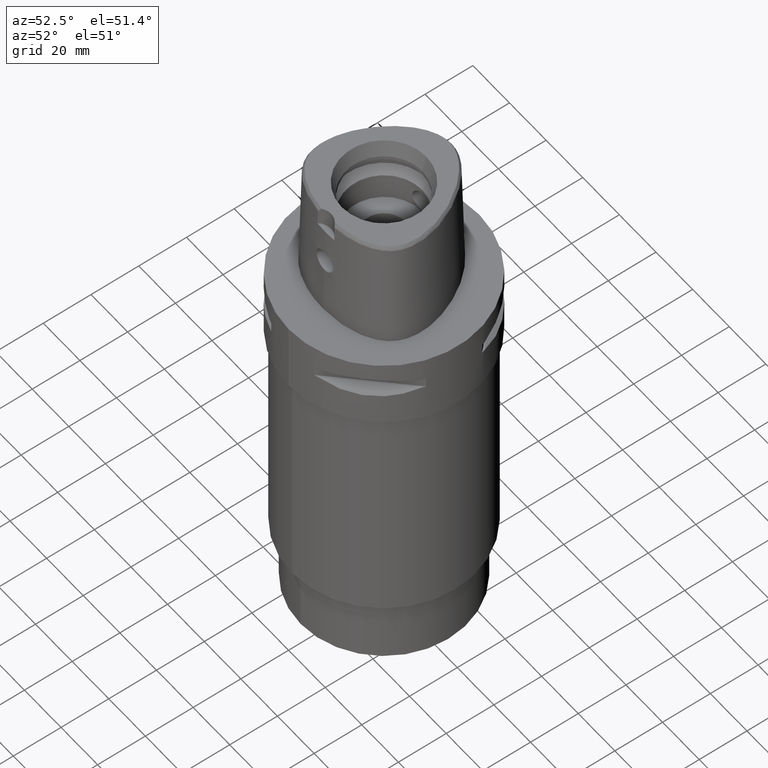
[diagram: clean part render]
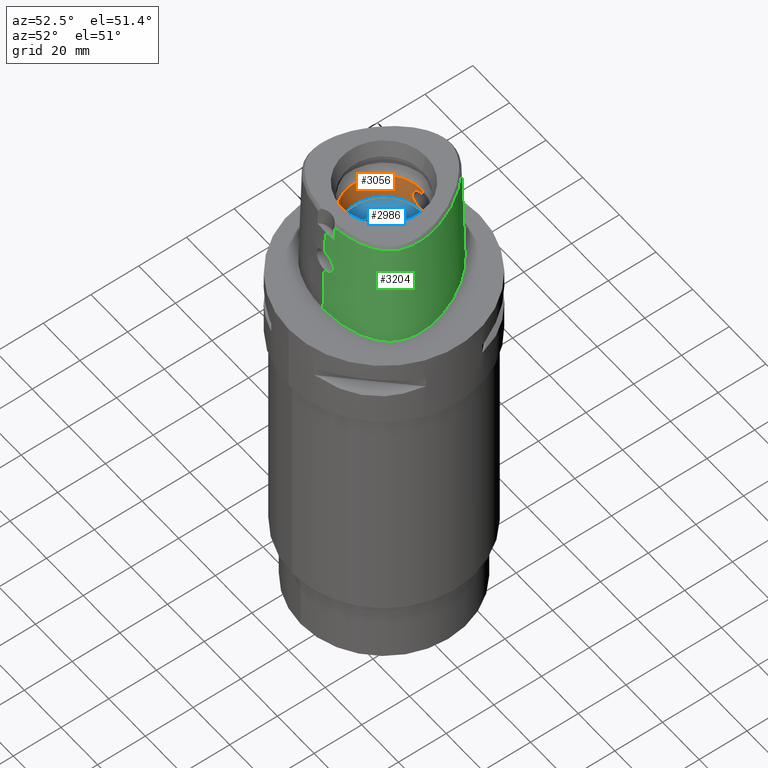
[diagram: same view with three faces highlighted in distinct colors, each labeled with its STEP entity id]
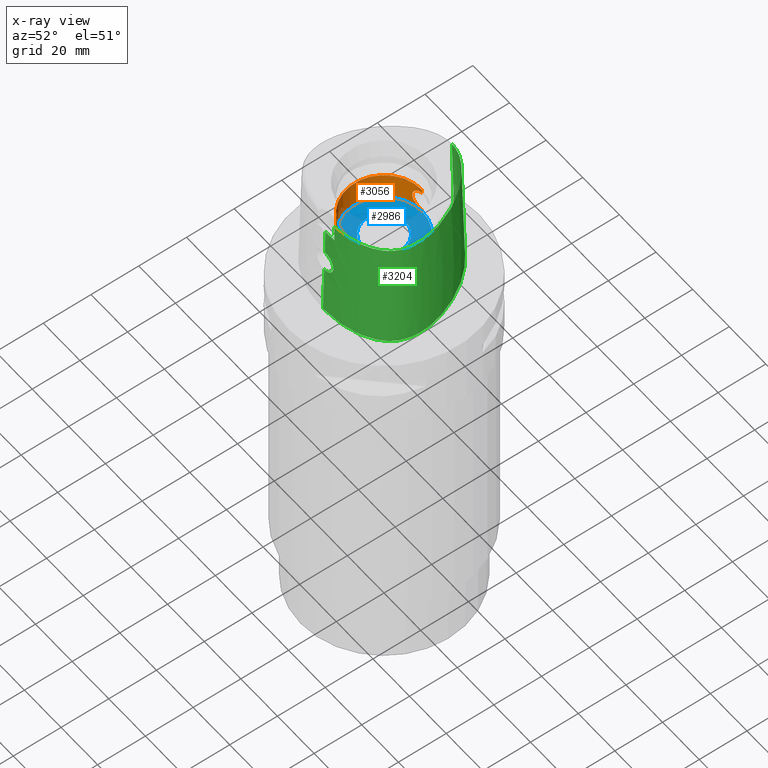
[diagram: x-ray of the same camera — body ghosted, the three highlighted faces saturated]
A machine part, auxiliary view with three faces highlighted in distinct colors.
The next image is the same camera in x-ray (body ghosted, the three faces saturated) — at least one of them is partly hidden behind the body in this view.
Their STEP definitions:

[orange] entity #3056 — the highlighted cylindrical surface (partial cylindrical patch) has radius 16 mm, axis along (0, 0, -1).
#892=CARTESIAN_POINT('',(0.E0,0.E0,2.E1));
#893=DIRECTION('',(0.E0,0.E0,-1.E0));
#894=DIRECTION('',(0.E0,-1.E0,0.E0));
#895=AXIS2_PLACEMENT_3D('',#892,#893,#894);
#916=CARTESIAN_POINT('',(0.E0,1.6E1,2.045E1));
#930=CARTESIAN_POINT('',(0.E0,1.6E1,2.955E1));
#935=DIRECTION('',(0.E0,0.E0,1.E0));
#936=VECTOR('',#935,1.95E0);
#937=CARTESIAN_POINT('',(0.E0,1.6E1,2.955E1));
#938=LINE('',#937,#936);
#956=CARTESIAN_POINT('',(0.E0,-1.6E1,2.045E1));
#961=DIRECTION('',(0.E0,0.E0,1.E0));
#962=VECTOR('',#961,4.5E-1);
#963=CARTESIAN_POINT('',(0.E0,1.6E1,2.E1));
#964=LINE('',#963,#962);
#982=CARTESIAN_POINT('',(0.E0,-1.6E1,2.045E1));
#983=CARTESIAN_POINT('',(-3.988948998125E-1,-1.6E1,2.045E1));
#984=CARTESIAN_POINT('',(-1.170987360633E0,-1.597053913087E1,2.055220966178E1));
#985=CARTESIAN_POINT('',(-2.269206104284E0,-1.585004398631E1,2.099599436019E1));
#986=CARTESIAN_POINT('',(-3.235863776278E0,-1.567764363437E1,2.172609325033E1));
#987=CARTESIAN_POINT('',(-3.979904703448E0,-1.550130476977E1,2.268481060305E1));
#988=CARTESIAN_POINT('',(-4.449784393742E0,-1.536976417383E1,2.382040560353E1));
#989=CARTESIAN_POINT('',(-4.600141431500E0,-1.532423574871E1,2.500311963522E1));
#990=CARTESIAN_POINT('',(-4.449652105277E0,-1.536975233797E1,2.617039791798E1));
#991=CARTESIAN_POINT('',(-3.998276541425E0,-1.549625109279E1,2.727843841681E1));
#992=CARTESIAN_POINT('',(-3.274688999697E0,-1.566934067946E1,2.823518132932E1));
#993=CARTESIAN_POINT('',(-2.304725749980E0,-1.584538307429E1,2.898660912360E1));
#994=CARTESIAN_POINT('',(-1.179316718045E0,-1.597044866855E1,2.944760162686E1));
#995=CARTESIAN_POINT('',(-4.011673779186E-1,-1.6E1,2.955E1));
#996=CARTESIAN_POINT('',(0.E0,-1.6E1,2.955E1));
#1001=DIRECTION('',(0.E0,0.E0,1.E0));
#1002=VECTOR('',#1001,1.95E0);
#1003=CARTESIAN_POINT('',(0.E0,-1.6E1,2.955E1));
#1004=LINE('',#1003,#1002);
#1008=CARTESIAN_POINT('',(0.E0,1.6E1,2.955E1));
#1009=CARTESIAN_POINT('',(-3.988854368759E-1,1.6E1,2.955E1));
#1010=CARTESIAN_POINT('',(-1.170962987921E0,1.597054019011E1,2.944779447969E1));
#1011=CARTESIAN_POINT('',(-2.269151986787E0,1.585005145508E1,2.900403236787E1));
#1012=CARTESIAN_POINT('',(-3.235831887755E0,1.567765138962E1,2.827394962471E1));
#1013=CARTESIAN_POINT('',(-3.979933991153E0,1.550129737255E1,2.731514259268E1));
#1014=CARTESIAN_POINT('',(-4.449770091995E0,1.536976800640E1,2.617961812657E1));
#1015=CARTESIAN_POINT('',(-4.600139734699E0,1.532423627942E1,2.499694128467E1));
#1016=CARTESIAN_POINT('',(-4.449673220549E0,1.536974637474E1,2.382965812239E1));
#1017=CARTESIAN_POINT('',(-3.998261880303E0,1.549625493795E1,2.272153221716E1));
#1018=CARTESIAN_POINT('',(-3.274703198311E0,1.566933721044E1,2.176483934127E1));
#1019=CARTESIAN_POINT('',(-2.304747804114E0,1.584537985950E1,2.101340190333E1));
#1020=CARTESIAN_POINT('',(-1.179336456756E0,1.597044741960E1,2.055240325074E1));
#1021=CARTESIAN_POINT('',(-4.011754548511E-1,1.6E1,2.045E1));
#1022=CARTESIAN_POINT('',(0.E0,1.6E1,2.045E1));
#1027=DIRECTION('',(0.E0,0.E0,1.E0));
#1028=VECTOR('',#1027,4.5E-1);
#1029=CARTESIAN_POINT('',(0.E0,-1.6E1,2.E1));
#1030=LINE('',#1029,#1028);
#1126=CARTESIAN_POINT('',(0.E0,0.E0,3.15E1));
#1127=DIRECTION('',(0.E0,0.E0,1.E0));
#1128=DIRECTION('',(0.E0,1.E0,0.E0));
#1129=AXIS2_PLACEMENT_3D('',#1126,#1127,#1128);
#1709=CARTESIAN_POINT('',(0.E0,1.6E1,2.E1));
#1710=CARTESIAN_POINT('',(0.E0,-1.6E1,2.E1));
#1711=VERTEX_POINT('',#1709);
#1712=VERTEX_POINT('',#1710);
#1713=VERTEX_POINT('',#916);
#1714=VERTEX_POINT('',#930);
#1715=CARTESIAN_POINT('',(0.E0,1.6E1,3.15E1));
#1716=VERTEX_POINT('',#1715);
#1717=CARTESIAN_POINT('',(0.E0,-1.6E1,3.15E1));
#1718=VERTEX_POINT('',#1717);
#1719=CARTESIAN_POINT('',(0.E0,-1.6E1,2.955E1));
#1720=VERTEX_POINT('',#1719);
#1721=VERTEX_POINT('',#956);
#3039=CARTESIAN_POINT('',(0.E0,0.E0,5.04E1));
#3040=DIRECTION('',(0.E0,0.E0,-1.E0));
#3041=DIRECTION('',(0.E0,-1.E0,0.E0));
#3042=AXIS2_PLACEMENT_3D('',#3039,#3040,#3041);
#3043=CYLINDRICAL_SURFACE('',#3042,1.6E1);
#3045=ORIENTED_EDGE('',*,*,#3044,.T.);
#3046=ORIENTED_EDGE('',*,*,#2998,.T.);
#3048=ORIENTED_EDGE('',*,*,#3047,.F.);
#3049=ORIENTED_EDGE('',*,*,#2994,.F.);
#3050=ORIENTED_EDGE('',*,*,#3031,.T.);
#3051=ORIENTED_EDGE('',*,*,#3005,.F.);
#3052=ORIENTED_EDGE('',*,*,#2978,.F.);
#3053=ORIENTED_EDGE('',*,*,#3002,.T.);
#3054=EDGE_LOOP('',(#3045,#3046,#3048,#3049,#3050,#3051,#3052,#3053));
#3055=FACE_OUTER_BOUND('',#3054,.F.);
#896=CIRCLE('',#895,1.6E1);
#997=B_SPLINE_CURVE_WITH_KNOTS('',3,(#982,#983,#984,#985,#986,#987,#988,#989,
#990,#991,#992,#993,#994,#995,#996),.UNSPECIFIED.,.F.,.F.,(4,1,1,1,1,1,1,1,1,1,
1,1,4),(0.E0,8.333333333333E-2,1.666666666667E-1,2.5E-1,3.333333333333E-1,
4.166666666667E-1,5.E-1,5.833333333333E-1,6.666666666667E-1,7.5E-1,
8.333333333333E-1,9.166666666667E-1,1.E0),.UNSPECIFIED.);
#1023=B_SPLINE_CURVE_WITH_KNOTS('',3,(#1008,#1009,#1010,#1011,#1012,#1013,#1014,
#1015,#1016,#1017,#1018,#1019,#1020,#1021,#1022),.UNSPECIFIED.,.F.,.F.,(4,1,1,1,
1,1,1,1,1,1,1,1,4),(0.E0,8.333333333333E-2,1.666666666667E-1,2.5E-1,
3.333333333333E-1,4.166666666667E-1,5.E-1,5.833333333333E-1,6.666666666667E-1,
7.5E-1,8.333333333333E-1,9.166666666667E-1,1.E0),.UNSPECIFIED.);
#1130=CIRCLE('',#1129,1.6E1);
#2978=EDGE_CURVE('',#1712,#1711,#896,.T.);
#2994=EDGE_CURVE('',#1714,#1716,#938,.T.);
#2998=EDGE_CURVE('',#1720,#1718,#1004,.T.);
#3002=EDGE_CURVE('',#1712,#1721,#1030,.T.);
#3005=EDGE_CURVE('',#1711,#1713,#964,.T.);
#3031=EDGE_CURVE('',#1714,#1713,#1023,.T.);
#3044=EDGE_CURVE('',#1721,#1720,#997,.T.);
#3047=EDGE_CURVE('',#1716,#1718,#1130,.T.);
#3056=ADVANCED_FACE('',(#3055),#3043,.F.);

[blue] entity #2986 — the highlighted planar face has unit normal (0, 0, -1).
#884=CARTESIAN_POINT('',(0.E0,0.E0,2.E1));
#885=DIRECTION('',(0.E0,0.E0,-1.E0));
#886=DIRECTION('',(0.E0,1.E0,0.E0));
#887=AXIS2_PLACEMENT_3D('',#884,#885,#886);
#892=CARTESIAN_POINT('',(0.E0,0.E0,2.E1));
#893=DIRECTION('',(0.E0,0.E0,-1.E0));
#894=DIRECTION('',(0.E0,-1.E0,0.E0));
#895=AXIS2_PLACEMENT_3D('',#892,#893,#894);
#900=CARTESIAN_POINT('',(0.E0,0.E0,2.E1));
#901=DIRECTION('',(0.E0,0.E0,1.E0));
#902=DIRECTION('',(0.E0,1.E0,0.E0));
#903=AXIS2_PLACEMENT_3D('',#900,#901,#902);
#908=CARTESIAN_POINT('',(0.E0,0.E0,2.E1));
#909=DIRECTION('',(0.E0,0.E0,1.E0));
#910=DIRECTION('',(0.E0,-1.E0,0.E0));
#911=AXIS2_PLACEMENT_3D('',#908,#909,#910);
#1705=CARTESIAN_POINT('',(0.E0,9.E0,2.E1));
#1706=VERTEX_POINT('',#1705);
#1707=CARTESIAN_POINT('',(0.E0,-9.E0,2.E1));
#1708=VERTEX_POINT('',#1707);
#1709=CARTESIAN_POINT('',(0.E0,1.6E1,2.E1));
#1710=CARTESIAN_POINT('',(0.E0,-1.6E1,2.E1));
#1711=VERTEX_POINT('',#1709);
#1712=VERTEX_POINT('',#1710);
#2971=CARTESIAN_POINT('',(0.E0,0.E0,2.E1));
#2972=DIRECTION('',(0.E0,0.E0,-1.E0));
#2973=DIRECTION('',(0.E0,-1.E0,0.E0));
#2974=AXIS2_PLACEMENT_3D('',#2971,#2972,#2973);
#2975=PLANE('',#2974);
#2977=ORIENTED_EDGE('',*,*,#2976,.T.);
#2979=ORIENTED_EDGE('',*,*,#2978,.T.);
#2980=EDGE_LOOP('',(#2977,#2979));
#2981=FACE_OUTER_BOUND('',#2980,.F.);
#2982=ORIENTED_EDGE('',*,*,#2953,.T.);
#2983=ORIENTED_EDGE('',*,*,#2966,.T.);
#2984=EDGE_LOOP('',(#2982,#2983));
#2985=FACE_BOUND('',#2984,.F.);
#888=CIRCLE('',#887,1.6E1);
#896=CIRCLE('',#895,1.6E1);
#904=CIRCLE('',#903,9.E0);
#912=CIRCLE('',#911,9.E0);
#2953=EDGE_CURVE('',#1706,#1708,#904,.T.);
#2966=EDGE_CURVE('',#1708,#1706,#912,.T.);
#2976=EDGE_CURVE('',#1711,#1712,#888,.T.);
#2978=EDGE_CURVE('',#1712,#1711,#896,.T.);
#2986=ADVANCED_FACE('',(#2981,#2985),#2975,.F.);

[green] entity #3204 — the highlighted face is a freeform B-spline surface patch.
#125=CARTESIAN_POINT('',(4.472216720977E0,-2.420009030094E1,4.652069014669E1));
#135=CARTESIAN_POINT('',(-1.365201782835E-11,2.841206021535E1,
4.652071719451E1));
#136=CARTESIAN_POINT('',(4.800783148086E-1,2.841206021535E1,4.652071719450E1));
#137=CARTESIAN_POINT('',(1.443633564256E0,2.836047423290E1,4.652070612134E1));
#138=CARTESIAN_POINT('',(3.006717809668E0,2.810374991431E1,4.652071895001E1));
#139=CARTESIAN_POINT('',(4.643806437189E0,2.764888401286E1,4.652071594786E1));
#140=CARTESIAN_POINT('',(6.371682421167E0,2.697137852735E1,4.652072017783E1));
#141=CARTESIAN_POINT('',(8.176776818214E0,2.604895952640E1,4.652072360530E1));
#142=CARTESIAN_POINT('',(9.997520913474E0,2.489753622541E1,4.652070911803E1));
#143=CARTESIAN_POINT('',(1.180890678371E1,2.353090087569E1,4.652072311815E1));
#144=CARTESIAN_POINT('',(1.364156786623E1,2.191681243606E1,4.652071904823E1));
#145=CARTESIAN_POINT('',(1.555616176615E1,1.996690449178E1,4.652071383526E1));
#146=CARTESIAN_POINT('',(1.759272647723E1,1.756043704782E1,4.652070896988E1));
#147=CARTESIAN_POINT('',(1.968448913071E1,1.465727560507E1,4.652072045533E1));
#148=CARTESIAN_POINT('',(2.164903945080E1,1.140909660302E1,4.652071390001E1));
#149=CARTESIAN_POINT('',(2.330240042523E1,8.098264655521E0,4.652071916950E1));
#150=CARTESIAN_POINT('',(2.454461719628E1,5.033755497201E0,4.652071877755E1));
#151=CARTESIAN_POINT('',(2.543620386982E1,2.262322693001E0,4.652071347081E1));
#152=CARTESIAN_POINT('',(2.605232277954E1,-2.738040755474E-1,4.652071826649E1));
#153=CARTESIAN_POINT('',(2.644034087833E1,-2.630071501611E0,4.652071561282E1));
#154=CARTESIAN_POINT('',(2.662625232471E1,-4.837050023748E0,4.652072406160E1));
#155=CARTESIAN_POINT('',(2.662068438257E1,-6.934992320991E0,4.652071325693E1));
#156=CARTESIAN_POINT('',(2.643205997063E1,-8.863428394583E0,4.652072146574E1));
#157=CARTESIAN_POINT('',(2.608134680444E1,-1.060894523552E1,4.652072207814E1));
#158=CARTESIAN_POINT('',(2.559414556721E1,-1.216598861685E1,4.652071184042E1));
#159=CARTESIAN_POINT('',(2.497708247383E1,-1.357880835482E1,4.652075625209E1));
#160=CARTESIAN_POINT('',(2.423535710263E1,-1.485955963698E1,4.652071407370E1));
#161=CARTESIAN_POINT('',(2.333586772374E1,-1.607732452768E1,4.652072349060E1));
#162=CARTESIAN_POINT('',(2.224421062834E1,-1.726686107722E1,4.652071613376E1));
#163=CARTESIAN_POINT('',(2.090495558099E1,-1.844965944733E1,4.652071834181E1));
#164=CARTESIAN_POINT('',(1.930815672318E1,-1.959302109470E1,4.652071881573E1));
#165=CARTESIAN_POINT('',(1.746858589777E1,-2.065862981379E1,4.652071590138E1));
#166=CARTESIAN_POINT('',(1.545493642117E1,-2.160066858610E1,4.652072045827E1));
#167=CARTESIAN_POINT('',(1.323724324942E1,-2.243336853966E1,4.652071434359E1));
#168=CARTESIAN_POINT('',(1.073484876199E1,-2.316551609597E1,4.652071078674E1));
#169=CARTESIAN_POINT('',(7.879939282078E0,-2.378003522395E1,4.652074112682E1));
#170=CARTESIAN_POINT('',(5.651622652325E0,-2.408719090734E1,4.652064665801E1));
#171=CARTESIAN_POINT('',(4.472216720977E0,-2.420009030094E1,4.652069014669E1));
#244=DIRECTION('',(1.388127457203E-9,-2.499239851702E-2,-9.996876412242E-1));
#245=VECTOR('',#244,1.045326522127E1);
#246=CARTESIAN_POINT('',(-1.451045074373E-8,-2.457504746727E1,
4.000000005214E1));
#247=LINE('',#246,#245);
#264=CARTESIAN_POINT('',(-1.325339261565E-12,-2.506378435149E1,2.045E1));
#269=DIRECTION('',(-4.564776217394E-13,-2.499051295421E-2,-9.996876883619E-1));
#270=VECTOR('',#269,2.045638876829E1);
#271=CARTESIAN_POINT('',(-1.325339261565E-12,-2.506378435149E1,2.045E1));
#272=LINE('',#271,#270);
#292=CARTESIAN_POINT('',(-1.066322295589E-11,-2.5575E1,7.242354863971E-14));
#293=CARTESIAN_POINT('',(1.299512914374E0,-2.5575E1,7.242354863971E-14));
#294=CARTESIAN_POINT('',(3.828891737299E0,-2.547273084847E1,
-3.361188589770E-14));
#295=CARTESIAN_POINT('',(7.452281936901E0,-2.503972570486E1,0.E0));
#296=CARTESIAN_POINT('',(1.079035103972E1,-2.436233344926E1,0.E0));
#297=CARTESIAN_POINT('',(1.375604629003E1,-2.349760365754E1,0.E0));
#298=CARTESIAN_POINT('',(1.633495858736E1,-2.249798852006E1,0.E0));
#299=CARTESIAN_POINT('',(1.854822313696E1,-2.140386432149E1,0.E0));
#300=CARTESIAN_POINT('',(2.042718100825E1,-2.024713327651E1,0.E0));
#301=CARTESIAN_POINT('',(2.201751114381E1,-1.904249655730E1,0.E0));
#302=CARTESIAN_POINT('',(2.334725096820E1,-1.780754809610E1,0.E0));
#303=CARTESIAN_POINT('',(2.445182619670E1,-1.654775966174E1,0.E0));
#304=CARTESIAN_POINT('',(2.537402335765E1,-1.524052565076E1,0.E0));
#305=CARTESIAN_POINT('',(2.613132227153E1,-1.386823985495E1,0.E0));
#306=CARTESIAN_POINT('',(2.675428138021E1,-1.237962276499E1,0.E0));
#307=CARTESIAN_POINT('',(2.724713763813E1,-1.074287490997E1,0.E0));
#308=CARTESIAN_POINT('',(2.760224136212E1,-8.905745881523E0,0.E0));
#309=CARTESIAN_POINT('',(2.779140065741E1,-6.852282846749E0,0.E0));
#310=CARTESIAN_POINT('',(2.778359299836E1,-4.558846426101E0,0.E0));
#311=CARTESIAN_POINT('',(2.753980840209E1,-2.002375639615E0,0.E0));
#312=CARTESIAN_POINT('',(2.701500946951E1,8.272514192075E-1,0.E0));
#313=CARTESIAN_POINT('',(2.616610560913E1,3.911599665835E0,0.E0));
#314=CARTESIAN_POINT('',(2.496121277058E1,7.200845263342E0,0.E0));
#315=CARTESIAN_POINT('',(2.339571358272E1,1.059776959716E1,0.E0));
#316=CARTESIAN_POINT('',(2.151168577758E1,1.395516062829E1,0.E0));
#317=CARTESIAN_POINT('',(1.940374788127E1,1.710012164754E1,0.E0));
#318=CARTESIAN_POINT('',(1.717344927805E1,1.991097410857E1,0.E0));
#319=CARTESIAN_POINT('',(1.492012389289E1,2.231673305241E1,0.E0));
#320=CARTESIAN_POINT('',(1.271143594534E1,2.430894694186E1,0.E0));
#321=CARTESIAN_POINT('',(1.058779367883E1,2.591225331814E1,0.E0));
#322=CARTESIAN_POINT('',(8.573367583211E0,2.716442609768E1,0.E0));
#323=CARTESIAN_POINT('',(6.669634307141E0,2.811279282345E1,0.E0));
#324=CARTESIAN_POINT('',(4.871344853576E0,2.879918582831E1,0.E0));
#325=CARTESIAN_POINT('',(3.166116559937E0,2.925914789692E1,0.E0));
#326=CARTESIAN_POINT('',(1.547538607096E0,2.951972674597E1,
-3.060622415416E-14));
#327=CARTESIAN_POINT('',(5.082248882185E-1,2.957499999999E1,
6.594724766273E-14));
#328=CARTESIAN_POINT('',(2.898947418086E-11,2.957499999999E1,
6.594724766273E-14));
#333=CARTESIAN_POINT('',(2.898947418086E-11,2.957499999999E1,
6.594724766273E-14));
#369=CARTESIAN_POINT('',(-1.066322295589E-11,-2.5575E1,7.242354863971E-14));
#1048=CARTESIAN_POINT('',(-1.325339261565E-12,-2.506378435149E1,2.045E1));
#1049=CARTESIAN_POINT('',(4.314207832601E-1,-2.506378435149E1,2.045E1));
#1050=CARTESIAN_POINT('',(1.294833440727E0,-2.504883758416E1,2.057362550348E1));
#1051=CARTESIAN_POINT('',(2.486465876320E0,-2.498726647870E1,2.111559526577E1));
#1052=CARTESIAN_POINT('',(3.481032176196E0,-2.490212102175E1,2.197354559849E1));
#1053=CARTESIAN_POINT('',(4.194636570748E0,-2.481513838840E1,2.308172019246E1));
#1054=CARTESIAN_POINT('',(4.564816265539E0,-2.474830906284E1,2.434002141554E1));
#1055=CARTESIAN_POINT('',(4.565528833608E0,-2.471522165195E1,2.565430156675E1));
#1056=CARTESIAN_POINT('',(4.197738302338E0,-2.471873693328E1,2.691022841564E1));
#1057=CARTESIAN_POINT('',(3.490197084991E0,-2.474995290235E1,2.801551137478E1));
#1058=CARTESIAN_POINT('',(2.496816413379E0,-2.479242270538E1,2.887840683562E1));
#1059=CARTESIAN_POINT('',(1.300135704064E0,-2.482740251167E1,2.942543782577E1));
#1060=CARTESIAN_POINT('',(4.332394834261E-1,-2.483629963748E1,2.955E1));
#1061=CARTESIAN_POINT('',(1.372734075409E-14,-2.483629963748E1,2.955E1));
#1066=CARTESIAN_POINT('',(4.602926386879E0,-2.435121850030E1,4.000000005215E1));
#1067=CARTESIAN_POINT('',(4.588866899356E0,-2.433440433283E1,4.072434907413E1));
#1068=CARTESIAN_POINT('',(4.559961035626E0,-2.430022594202E1,4.217314077646E1));
#1069=CARTESIAN_POINT('',(4.516394065040E0,-2.424985529238E1,4.434670381198E1));
#1070=CARTESIAN_POINT('',(4.487210999458E0,-2.421685509515E1,4.579599754735E1));
#1071=CARTESIAN_POINT('',(4.472216720977E0,-2.420009030094E1,4.652069014669E1));
#1076=DIRECTION('',(9.163266850931E-13,2.499051293976E-2,-9.996876883622E-1));
#1077=VECTOR('',#1076,4.653525069487E1);
#1078=CARTESIAN_POINT('',(-1.365201782835E-11,2.841206021535E1,
4.652071719451E1));
#1079=LINE('',#1078,#1077);
#1083=CARTESIAN_POINT('',(4.602926386879E0,-2.435121850030E1,4.000000005215E1));
#1084=CARTESIAN_POINT('',(4.092927945188E0,-2.440134254990E1,4.000000005215E1));
#1085=CARTESIAN_POINT('',(3.071957838276E0,-2.448406989328E1,3.999999998262E1));
#1086=CARTESIAN_POINT('',(1.536621703767E0,-2.455890147704E1,3.999999998262E1));
#1087=CARTESIAN_POINT('',(5.124223333400E-1,-2.457504746727E1,
4.000000005214E1));
#1088=CARTESIAN_POINT('',(-1.451045074373E-8,-2.457504746727E1,
4.000000005214E1));
#1093=CARTESIAN_POINT('',(-1.451045074373E-8,-2.457504746727E1,
4.000000005214E1));
#1572=VERTEX_POINT('',#125);
#1573=VERTEX_POINT('',#1066);
#1577=CARTESIAN_POINT('',(-1.365201782835E-11,2.841206021535E1,
4.652071719451E1));
#1578=VERTEX_POINT('',#1577);
#1579=VERTEX_POINT('',#333);
#1580=VERTEX_POINT('',#369);
#1581=VERTEX_POINT('',#1093);
#1582=CARTESIAN_POINT('',(1.372734075387E-14,-2.483629963748E1,2.955E1));
#1583=VERTEX_POINT('',#1582);
#1584=VERTEX_POINT('',#264);
#3084=CARTESIAN_POINT('',(-8.532294279098E-1,-2.559082453991E1,
-9.304148365082E-1));
#3085=CARTESIAN_POINT('',(-8.462047033874E-1,-2.518772786379E1,
1.519677566297E1));
#3086=CARTESIAN_POINT('',(-8.391799788649E-1,-2.478463118767E1,
3.132396616244E1));
#3087=CARTESIAN_POINT('',(-8.321552543425E-1,-2.438153451155E1,
4.745115666192E1));
#3088=CARTESIAN_POINT('',(-5.689009027181E-1,-2.559577918683E1,
-9.304148365082E-1));
#3089=CARTESIAN_POINT('',(-5.642169906886E-1,-2.519264549678E1,
1.519677566297E1));
#3090=CARTESIAN_POINT('',(-5.595330786591E-1,-2.478951180672E1,
3.132396616244E1));
#3091=CARTESIAN_POINT('',(-5.548491666296E-1,-2.438637811666E1,
4.745115666192E1));
#3092=CARTESIAN_POINT('',(2.393561154798E0,-2.562160366769E1,
-9.304148365082E-1));
#3093=CARTESIAN_POINT('',(2.373865153289E0,-2.521827228286E1,1.519677566297E1));
#3094=CARTESIAN_POINT('',(2.354169151779E0,-2.481494089803E1,3.132396616244E1));
#3095=CARTESIAN_POINT('',(2.334473150270E0,-2.441160951320E1,4.745115666192E1));
#3096=CARTESIAN_POINT('',(6.695047937740E0,-2.526858195515E1,
-9.304148365082E-1));
#3097=CARTESIAN_POINT('',(6.639625056557E0,-2.486795306596E1,1.519677566297E1));
#3098=CARTESIAN_POINT('',(6.584202175374E0,-2.446732417677E1,3.132396616244E1));
#3099=CARTESIAN_POINT('',(6.528779294191E0,-2.406669528758E1,4.745115666192E1));
#3100=CARTESIAN_POINT('',(1.174634101719E1,-2.415815461964E1,
-9.304148365082E-1));
#3101=CARTESIAN_POINT('',(1.164093420165E1,-2.376831829599E1,1.519677566297E1));
#3102=CARTESIAN_POINT('',(1.153552738612E1,-2.337848197234E1,3.132396616244E1));
#3103=CARTESIAN_POINT('',(1.143012057058E1,-2.298864564869E1,4.745115666192E1));
#3104=CARTESIAN_POINT('',(1.530623779928E1,-2.298697011027E1,
-9.304148365082E-1));
#3105=CARTESIAN_POINT('',(1.515935276810E1,-2.261055590728E1,1.519677566297E1));
#3106=CARTESIAN_POINT('',(1.501246773693E1,-2.223414170429E1,3.132396616244E1));
#3107=CARTESIAN_POINT('',(1.486558270576E1,-2.185772750130E1,4.745115666192E1));
#3108=CARTESIAN_POINT('',(1.856135208827E1,-2.147443747483E1,
-9.304148365082E-1));
#3109=CARTESIAN_POINT('',(1.836798839921E1,-2.111923999447E1,1.519677566297E1));
#3110=CARTESIAN_POINT('',(1.817462471014E1,-2.076404251412E1,3.132396616244E1));
#3111=CARTESIAN_POINT('',(1.798126102107E1,-2.040884503376E1,4.745115666192E1));
#3112=CARTESIAN_POINT('',(2.143542293795E1,-1.961750339851E1,
-9.304148365082E-1));
#3113=CARTESIAN_POINT('',(2.119046230332E1,-1.929498355346E1,1.519677566297E1));
#3114=CARTESIAN_POINT('',(2.094550166869E1,-1.897246370840E1,3.132396616244E1));
#3115=CARTESIAN_POINT('',(2.070054103406E1,-1.864994386334E1,4.745115666192E1));
#3116=CARTESIAN_POINT('',(2.344929528803E1,-1.778045352577E1,
-9.304148365082E-1));
#3117=CARTESIAN_POINT('',(2.315870194523E1,-1.749879683957E1,1.519677566297E1));
#3118=CARTESIAN_POINT('',(2.286810860243E1,-1.721714015336E1,3.132396616244E1));
#3119=CARTESIAN_POINT('',(2.257751525962E1,-1.693548346716E1,4.745115666192E1));
#3120=CARTESIAN_POINT('',(2.479336082175E1,-1.613554022985E1,
-9.304148365082E-1));
#3121=CARTESIAN_POINT('',(2.446791211702E1,-1.589630645407E1,1.519677566297E1));
#3122=CARTESIAN_POINT('',(2.414246341229E1,-1.565707267830E1,3.132396616244E1));
#3123=CARTESIAN_POINT('',(2.381701470755E1,-1.541783890252E1,4.745115666192E1));
#3124=CARTESIAN_POINT('',(2.565830880944E1,-1.481383149810E1,
-9.304148365082E-1));
#3125=CARTESIAN_POINT('',(2.530843702147E1,-1.461183292689E1,1.519677566297E1));
#3126=CARTESIAN_POINT('',(2.495856523350E1,-1.440983435568E1,3.132396616244E1));
#3127=CARTESIAN_POINT('',(2.460869344552E1,-1.420783578447E1,4.745115666192E1));
#3128=CARTESIAN_POINT('',(2.637046815366E1,-1.340391020182E1,
-9.304148365082E-1));
#3129=CARTESIAN_POINT('',(2.600056127507E1,-1.324168024534E1,1.519677566297E1));
#3130=CARTESIAN_POINT('',(2.563065439649E1,-1.307945028885E1,3.132396616244E1));
#3131=CARTESIAN_POINT('',(2.526074751790E1,-1.291722033237E1,4.745115666192E1));
#3132=CARTESIAN_POINT('',(2.712297208849E1,-1.141745865788E1,
-9.304148365082E-1));
#3133=CARTESIAN_POINT('',(2.673375356548E1,-1.130662577557E1,1.519677566297E1));
#3134=CARTESIAN_POINT('',(2.634453504246E1,-1.119579289326E1,3.132396616244E1));
#3135=CARTESIAN_POINT('',(2.595531651944E1,-1.108496001096E1,4.745115666192E1));
#3136=CARTESIAN_POINT('',(2.770696776799E1,-8.754869101969E0,
-9.304148365082E-1));
#3137=CARTESIAN_POINT('',(2.730517712237E1,-8.703986959507E0,1.519677566297E1));
#3138=CARTESIAN_POINT('',(2.690338647675E1,-8.653104817046E0,3.132396616244E1));
#3139=CARTESIAN_POINT('',(2.650159583114E1,-8.602222674585E0,4.745115666192E1));
#3140=CARTESIAN_POINT('',(2.787808444001E1,-5.337383713842E0,
-9.304148365082E-1));
#3141=CARTESIAN_POINT('',(2.747379236878E1,-5.347524340578E0,1.519677566297E1));
#3142=CARTESIAN_POINT('',(2.706950029754E1,-5.357664967315E0,3.132396616244E1));
#3143=CARTESIAN_POINT('',(2.666520822631E1,-5.367805594051E0,4.745115666192E1));
#3144=CARTESIAN_POINT('',(2.756041893131E1,-1.762105662402E0,
-9.304148365082E-1));
#3145=CARTESIAN_POINT('',(2.716099284426E1,-1.823107514106E0,1.519677566297E1));
#3146=CARTESIAN_POINT('',(2.676156675721E1,-1.884109365810E0,3.132396616244E1));
#3147=CARTESIAN_POINT('',(2.636214067017E1,-1.945111217513E0,4.745115666192E1));
#3148=CARTESIAN_POINT('',(2.679474626644E1,1.906447389644E0,
-9.304148365082E-1));
#3149=CARTESIAN_POINT('',(2.640443212175E1,1.802817635814E0,1.519677566297E1));
#3150=CARTESIAN_POINT('',(2.601411797705E1,1.699187881985E0,3.132396616244E1));
#3151=CARTESIAN_POINT('',(2.562380383236E1,1.595558128155E0,4.745115666192E1));
#3152=CARTESIAN_POINT('',(2.523075707018E1,6.836210433965E0,
-9.304148365082E-1));
#3153=CARTESIAN_POINT('',(2.485610451803E1,6.683875411899E0,1.519677566297E1));
#3154=CARTESIAN_POINT('',(2.448145196588E1,6.531540389833E0,3.132396616244E1));
#3155=CARTESIAN_POINT('',(2.410679941373E1,6.379205367767E0,4.745115666192E1));
#3156=CARTESIAN_POINT('',(2.235908248550E1,1.290902243502E1,
-9.304148365082E-1));
#3157=CARTESIAN_POINT('',(2.200846680331E1,1.270659189461E1,1.519677566297E1));
#3158=CARTESIAN_POINT('',(2.165785112112E1,1.250416135420E1,3.132396616244E1));
#3159=CARTESIAN_POINT('',(2.130723543893E1,1.230173081378E1,4.745115666192E1));
#3160=CARTESIAN_POINT('',(1.777103259326E1,1.953703865021E1,
-9.304148365082E-1));
#3161=CARTESIAN_POINT('',(1.745811251294E1,1.927961871317E1,1.519677566297E1));
#3162=CARTESIAN_POINT('',(1.714519243262E1,1.902219877613E1,3.132396616244E1));
#3163=CARTESIAN_POINT('',(1.683227235230E1,1.876477883910E1,4.745115666192E1));
#3164=CARTESIAN_POINT('',(1.323332856887E1,2.406149250585E1,
-9.304148365082E-1));
#3165=CARTESIAN_POINT('',(1.296695400304E1,2.375598698774E1,1.519677566297E1));
#3166=CARTESIAN_POINT('',(1.270057943722E1,2.345048146963E1,3.132396616244E1));
#3167=CARTESIAN_POINT('',(1.243420487139E1,2.314497595152E1,4.745115666192E1));
#3168=CARTESIAN_POINT('',(9.316733121971E0,2.681182151409E1,
-9.304148365082E-1));
#3169=CARTESIAN_POINT('',(9.105791389092E0,2.646675901980E1,1.519677566297E1));
#3170=CARTESIAN_POINT('',(8.894849656214E0,2.612169652552E1,3.132396616244E1));
#3171=CARTESIAN_POINT('',(8.683907923335E0,2.577663403123E1,4.745115666192E1));
#3172=CARTESIAN_POINT('',(6.271543174010E0,2.837237221355E1,
-9.304148365082E-1));
#3173=CARTESIAN_POINT('',(6.114741867573E0,2.799897519957E1,1.519677566297E1));
#3174=CARTESIAN_POINT('',(5.957940561135E0,2.762557818558E1,3.132396616244E1));
#3175=CARTESIAN_POINT('',(5.801139254698E0,2.725218117160E1,4.745115666192E1));
#3176=CARTESIAN_POINT('',(3.154109048447E0,2.936302094259E1,
-9.304148365082E-1));
#3177=CARTESIAN_POINT('',(3.067023366885E0,2.896669960441E1,1.519677566297E1));
#3178=CARTESIAN_POINT('',(2.979937685322E0,2.857037826624E1,3.132396616244E1));
#3179=CARTESIAN_POINT('',(2.892852003759E0,2.817405692806E1,4.745115666192E1));
#3180=CARTESIAN_POINT('',(7.484115212604E-1,2.963215902818E1,
-9.304148365082E-1));
#3181=CARTESIAN_POINT('',(7.265635581655E-1,2.922802188960E1,1.519677566297E1));
#3182=CARTESIAN_POINT('',(7.047155950706E-1,2.882388475101E1,3.132396616244E1));
#3183=CARTESIAN_POINT('',(6.828676319756E-1,2.841974761243E1,4.745115666192E1));
#3184=CARTESIAN_POINT('',(-6.060951007432E-1,2.958848806023E1,
-9.304148365082E-1));
#3185=CARTESIAN_POINT('',(-5.886350935962E-1,2.918561913149E1,
1.519677566297E1));
#3186=CARTESIAN_POINT('',(-5.711750864491E-1,2.878275020274E1,
3.132396616244E1));
#3187=CARTESIAN_POINT('',(-5.537150793020E-1,2.837988127400E1,
4.745115666192E1));
#3188=CARTESIAN_POINT('',(-9.090099850758E-1,2.956867552494E1,
-9.304148365082E-1));
#3189=CARTESIAN_POINT('',(-8.826520940531E-1,2.916640527570E1,
1.519677566297E1));
#3190=CARTESIAN_POINT('',(-8.562942030305E-1,2.876413502646E1,
3.132396616244E1));
#3191=CARTESIAN_POINT('',(-8.299363120078E-1,2.836186477722E1,
4.745115666192E1));
#3192=B_SPLINE_SURFACE_WITH_KNOTS('',3,3,((#3084,#3085,#3086,#3087),(#3088,
#3089,#3090,#3091),(#3092,#3093,#3094,#3095),(#3096,#3097,#3098,#3099),(#3100,
#3101,#3102,#3103),(#3104,#3105,#3106,#3107),(#3108,#3109,#3110,#3111),(#3112,
#3113,#3114,#3115),(#3116,#3117,#3118,#3119),(#3120,#3121,#3122,#3123),(#3124,
#3125,#3126,#3127),(#3128,#3129,#3130,#3131),(#3132,#3133,#3134,#3135),(#3136,
#3137,#3138,#3139),(#3140,#3141,#3142,#3143),(#3144,#3145,#3146,#3147),(#3148,
#3149,#3150,#3151),(#3152,#3153,#3154,#3155),(#3156,#3157,#3158,#3159),(#3160,
#3161,#3162,#3163),(#3164,#3165,#3166,#3167),(#3168,#3169,#3170,#3171),(#3172,
#3173,#3174,#3175),(#3176,#3177,#3178,#3179),(#3180,#3181,#3182,#3183),(#3184,
#3185,#3186,#3187),(#3188,#3189,#3190,#3191)),.UNSPECIFIED.,.F.,.F.,.F.,(4,1,1,
1,1,1,1,1,1,1,1,1,1,1,1,1,1,1,1,1,1,1,1,1,4),(4,4),(-8.851417483015E-3,0.E0,
8.333333333340E-2,1.25E-1,1.666666666667E-1,2.083333333333E-1,2.5E-1,
2.916666666667E-1,3.124999999999E-1,3.333333333332E-1,3.541666666666E-1,
3.749999999999E-1,4.166666666666E-1,4.583333333332E-1,4.999999999998E-1,
5.416666666665E-1,5.833333333331E-1,6.666666666664E-1,7.499999999997E-1,
8.333333333330E-1,8.749999999996E-1,9.166666666663E-1,9.583333333329E-1,1.E0,
1.012009199036E0),(-2.212868055462E-9,1.000000112856E0),.UNSPECIFIED.);
#3193=ORIENTED_EDGE('',*,*,#2489,.F.);
#3194=ORIENTED_EDGE('',*,*,#2473,.F.);
#3195=ORIENTED_EDGE('',*,*,#3076,.T.);
#3196=ORIENTED_EDGE('',*,*,#2469,.F.);
#3198=ORIENTED_EDGE('',*,*,#3197,.F.);
#3199=ORIENTED_EDGE('',*,*,#1770,.T.);
#3200=ORIENTED_EDGE('',*,*,#2062,.F.);
#3201=ORIENTED_EDGE('',*,*,#2463,.T.);
#3202=EDGE_LOOP('',(#3193,#3194,#3195,#3196,#3198,#3199,#3200,#3201));
#3203=FACE_OUTER_BOUND('',#3202,.F.);
#172=B_SPLINE_CURVE_WITH_KNOTS('',3,(#135,#136,#137,#138,#139,#140,#141,#142,
#143,#144,#145,#146,#147,#148,#149,#150,#151,#152,#153,#154,#155,#156,#157,#158,
#159,#160,#161,#162,#163,#164,#165,#166,#167,#168,#169,#170,#171),.UNSPECIFIED.,
.F.,.F.,(4,1,1,1,1,1,1,1,1,1,1,1,1,1,1,1,1,1,1,1,1,1,1,1,1,1,1,1,1,1,1,1,1,1,4),
(0.E0,2.941176470588E-2,5.882352941176E-2,8.823529411765E-2,1.176470588235E-1,
1.470588235294E-1,1.764705882353E-1,2.058823529412E-1,2.352941176471E-1,
2.647058823529E-1,2.941176470588E-1,3.235294117647E-1,3.529411764706E-1,
3.823529411765E-1,4.117647058824E-1,4.411764705882E-1,4.705882352941E-1,5.E-1,
5.294117647059E-1,5.588235294118E-1,5.882352941176E-1,6.176470588235E-1,
6.470588235294E-1,6.764705882353E-1,7.058823529412E-1,7.352941176471E-1,
7.647058823529E-1,7.941176470588E-1,8.235294117647E-1,8.529411764706E-1,
8.823529411765E-1,9.117647058824E-1,9.411764705882E-1,9.705882352941E-1,1.E0),
.UNSPECIFIED.);
#329=B_SPLINE_CURVE_WITH_KNOTS('',3,(#292,#293,#294,#295,#296,#297,#298,#299,
#300,#301,#302,#303,#304,#305,#306,#307,#308,#309,#310,#311,#312,#313,#314,#315,
#316,#317,#318,#319,#320,#321,#322,#323,#324,#325,#326,#327,#328),.UNSPECIFIED.,
.F.,.F.,(4,1,1,1,1,1,1,1,1,1,1,1,1,1,1,1,1,1,1,1,1,1,1,1,1,1,1,1,1,1,1,1,1,1,4),
(0.E0,2.941176470588E-2,5.882352941176E-2,8.823529411765E-2,1.176470588235E-1,
1.470588235294E-1,1.764705882353E-1,2.058823529412E-1,2.352941176471E-1,
2.647058823529E-1,2.941176470588E-1,3.235294117647E-1,3.529411764706E-1,
3.823529411765E-1,4.117647058824E-1,4.411764705882E-1,4.705882352941E-1,5.E-1,
5.294117647059E-1,5.588235294118E-1,5.882352941176E-1,6.176470588235E-1,
6.470588235294E-1,6.764705882353E-1,7.058823529412E-1,7.352941176471E-1,
7.647058823529E-1,7.941176470588E-1,8.235294117647E-1,8.529411764706E-1,
8.823529411765E-1,9.117647058824E-1,9.411764705882E-1,9.705882352941E-1,1.E0),
.UNSPECIFIED.);
#1062=B_SPLINE_CURVE_WITH_KNOTS('',3,(#1048,#1049,#1050,#1051,#1052,#1053,#1054,
#1055,#1056,#1057,#1058,#1059,#1060,#1061),.UNSPECIFIED.,.F.,.F.,(4,1,1,1,1,1,1,
1,1,1,1,4),(0.E0,9.090909090909E-2,1.818181818182E-1,2.727272727273E-1,
3.636363636364E-1,4.545454545455E-1,5.454545454545E-1,6.363636363636E-1,
7.272727272727E-1,8.181818181818E-1,9.090909090909E-1,1.E0),.UNSPECIFIED.);
#1072=B_SPLINE_CURVE_WITH_KNOTS('',3,(#1066,#1067,#1068,#1069,#1070,#1071),
.UNSPECIFIED.,.F.,.F.,(4,1,1,4),(0.E0,3.333333333333E-1,6.666666666667E-1,1.E0),
.UNSPECIFIED.);
#1089=B_SPLINE_CURVE_WITH_KNOTS('',3,(#1083,#1084,#1085,#1086,#1087,#1088),
.UNSPECIFIED.,.F.,.F.,(4,1,1,4),(0.E0,3.333333333333E-1,6.666666666667E-1,1.E0),
.UNSPECIFIED.);
#1770=EDGE_CURVE('',#1573,#1572,#1072,.T.);
#2062=EDGE_CURVE('',#1578,#1572,#172,.T.);
#2463=EDGE_CURVE('',#1578,#1579,#1079,.T.);
#2469=EDGE_CURVE('',#1581,#1583,#247,.T.);
#2473=EDGE_CURVE('',#1584,#1580,#272,.T.);
#2489=EDGE_CURVE('',#1580,#1579,#329,.T.);
#3076=EDGE_CURVE('',#1584,#1583,#1062,.T.);
#3197=EDGE_CURVE('',#1573,#1581,#1089,.T.);
#3204=ADVANCED_FACE('',(#3203),#3192,.T.);